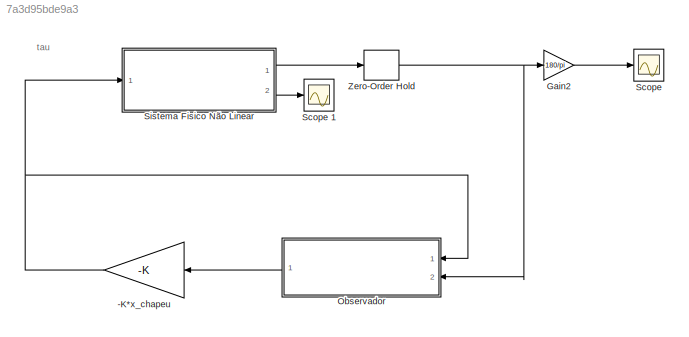
MODEL slx_7a3d95bde9a3
KIND model
CONFIG AbsTol = auto
CONFIG EnableMultiTasking = on
CONFIG FixedStep = auto
CONFIG MaxStep = auto
CONFIG MinStep = auto
CONFIG RelTol = 1e-3
CONFIG SampleTimeConstraint = Unconstrained
CONFIG Solver = ode45
CONFIG SolverName = ode45
CONFIG StartTime = 0.0
CONFIG StopTime = 15.0
BLOCK [Gain] -K*x_chapeu
  Gain = -K
  Multiplication = Matrix(K*u)
  NameLocation = top
BLOCK [Gain] Gain2
  Gain = 180/pi
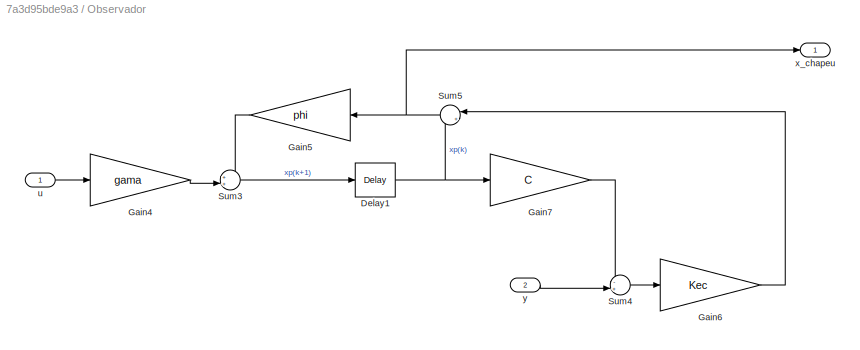
BLOCK [SubSystem] Observador
  NameLocation = top
  Ports = [2, 1]
  RequestExecContextInheritance = off
BLOCK [Delay] Observador/Delay1
  DelayLength = 1
  InitialCondition = [0;0]
  InputPortMap = u0
  Ports = [1, 1]
BLOCK [Gain] Observador/Gain4
  Gain = gama
  Multiplication = Matrix(K*u) (u vector)
BLOCK [Gain] Observador/Gain5
  Gain = phi
  Multiplication = Matrix(K*u) (u vector)
  NameLocation = top
BLOCK [Gain] Observador/Gain6
  Gain = Kec
  Multiplication = Matrix(K*u) (u vector)
  NameLocation = top
BLOCK [Gain] Observador/Gain7
  Gain = C
  Multiplication = Matrix(K*u) (u vector)
  NameLocation = top
BLOCK [Sum] Observador/Sum3
  Inputs = ++|
  Ports = [2, 1]
BLOCK [Sum] Observador/Sum4
  Inputs = -+|
  Ports = [2, 1]
BLOCK [Sum] Observador/Sum5
  Inputs = |++
  NameLocation = top
  Ports = [2, 1]
BLOCK [Inport] Observador/u
BLOCK [Outport] Observador/x_chapeu
  VectorParamsAs1DForOutWhenUnconnected = off
BLOCK [Inport] Observador/y
  Port = 2
BLOCK [Scope] Scope 
  Floating = off
  NumInputPorts = 1
  Ports = [1]
  ScopeSpecificationString = Simulink.scopes.TimeScopeBlockCfg('CurrentConfiguration', extmgr.ConfigurationSet(extmgr.Configuration('Core','General UI',true),extmgr.Configuration('Core','Source UI',true),extmgr.Configuration('Sources','WiredSimulink',true),extmgr.Configuration('Visuals','Time Domain',true,'SerializedDisplays',{struct('MinYLimReal','-2.67615','MaxYLimReal','22.51957','YLabelReal','','MinYLimMag','0.00000','Max...<+1465ch>
BLOCK [Scope] Scope 1
  Floating = off
  NumInputPorts = 1
  Ports = [1]
  ScopeSpecificationString = Simulink.scopes.TimeScopeBlockCfg('CurrentConfiguration', extmgr.ConfigurationSet(extmgr.Configuration('Core','General UI',true),extmgr.Configuration('Core','Source UI',true),extmgr.Configuration('Sources','WiredSimulink',true,'DataLoggingVariableName','ScopeData1'),extmgr.Configuration('Visuals','Time Domain',true,'SerializedDisplays',{struct('MinYLimReal','-24.39161','MaxYLimReal','66.37216','YL...<+1505ch>
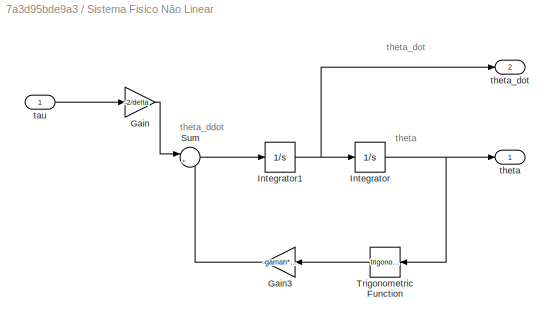
BLOCK [SubSystem] Sistema Fisico Não Linear
  Ports = [1, 2]
  RequestExecContextInheritance = off
BLOCK [Gain] Sistema Fisico Não Linear/Gain
  Gain = -2/delta
BLOCK [Gain] Sistema Fisico Não Linear/Gain3
  Gain = -gamah*g/delta
  NameLocation = top
BLOCK [Integrator] Sistema Fisico Não Linear/Integrator
  InitialCondition = 20*pi/180
  Ports = [1, 1]
BLOCK [Integrator] Sistema Fisico Não Linear/Integrator1
  Ports = [1, 1]
BLOCK [Sum] Sistema Fisico Não Linear/Sum
  Inputs = |++
  Ports = [2, 1]
BLOCK [Trigonometry] Sistema Fisico Não Linear/Trigonometric Function
  NameLocation = top
  Ports = [1, 1]
BLOCK [Inport] Sistema Fisico Não Linear/tau
BLOCK [Outport] Sistema Fisico Não Linear/theta
BLOCK [Outport] Sistema Fisico Não Linear/theta_dot
  Port = 2
BLOCK [ZeroOrderHold] Zero-Order Hold
  SampleTime = Ta
ANNOTATION (root): tau
ANNOTATION Sistema Fisico Não Linear: theta
ANNOTATION Sistema Fisico Não Linear: theta_ddot
ANNOTATION Sistema Fisico Não Linear: theta_dot
NET -K*x_chapeu:1 -> Observador:1, Sistema Fisico Não Linear:1
LINE Gain2:1 -> Scope :1
NET Observador/Delay1:1 -> Observador/Gain7:1, Observador/Sum5:2
LINE Observador/Gain4:1 -> Observador/Sum3:2
LINE Observador/Gain5:1 -> Observador/Sum3:1
LINE Observador/Gain6:1 -> Observador/Sum5:1
LINE Observador/Gain7:1 -> Observador/Sum4:1
LINE Observador/Sum3:1 -> Observador/Delay1:1
LINE Observador/Sum4:1 -> Observador/Gain6:1
NET Observador/Sum5:1 -> Observador/Gain5:1, Observador/x_chapeu:1
LINE Observador/u:1 -> Observador/Gain4:1
LINE Observador/y:1 -> Observador/Sum4:2
LINE Observador:1 -> -K*x_chapeu:1
LINE Sistema Fisico Não Linear/Gain3:1 -> Sistema Fisico Não Linear/Sum:2
LINE Sistema Fisico Não Linear/Gain:1 -> Sistema Fisico Não Linear/Sum:1
NET Sistema Fisico Não Linear/Integrator1:1 -> Sistema Fisico Não Linear/Integrator:1, Sistema Fisico Não Linear/theta_dot:1
NET Sistema Fisico Não Linear/Integrator:1 -> Sistema Fisico Não Linear/Trigonometric Function:1, Sistema Fisico Não Linear/theta:1
LINE Sistema Fisico Não Linear/Sum:1 -> Sistema Fisico Não Linear/Integrator1:1
LINE Sistema Fisico Não Linear/Trigonometric Function:1 -> Sistema Fisico Não Linear/Gain3:1
LINE Sistema Fisico Não Linear/tau:1 -> Sistema Fisico Não Linear/Gain:1
LINE Sistema Fisico Não Linear:1 -> Zero-Order Hold:1
LINE Sistema Fisico Não Linear:2 -> Scope 1:1
NET Zero-Order Hold:1 -> Gain2:1, Observador:2
note: NET lines group one-source signal fan-out (src -> all destinations, sorted); 1:1 wires keep LINE
